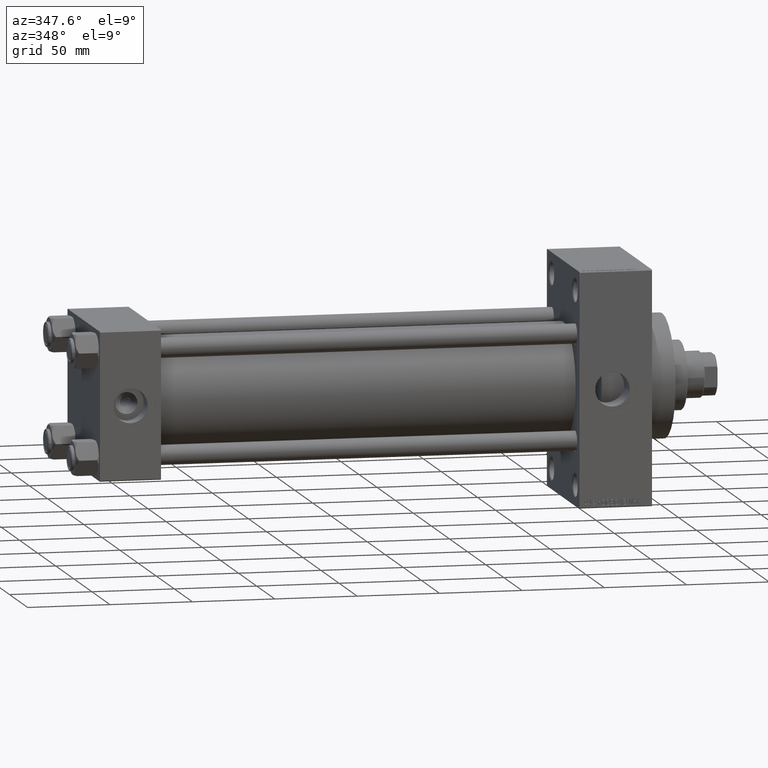
[diagram: clean part render]
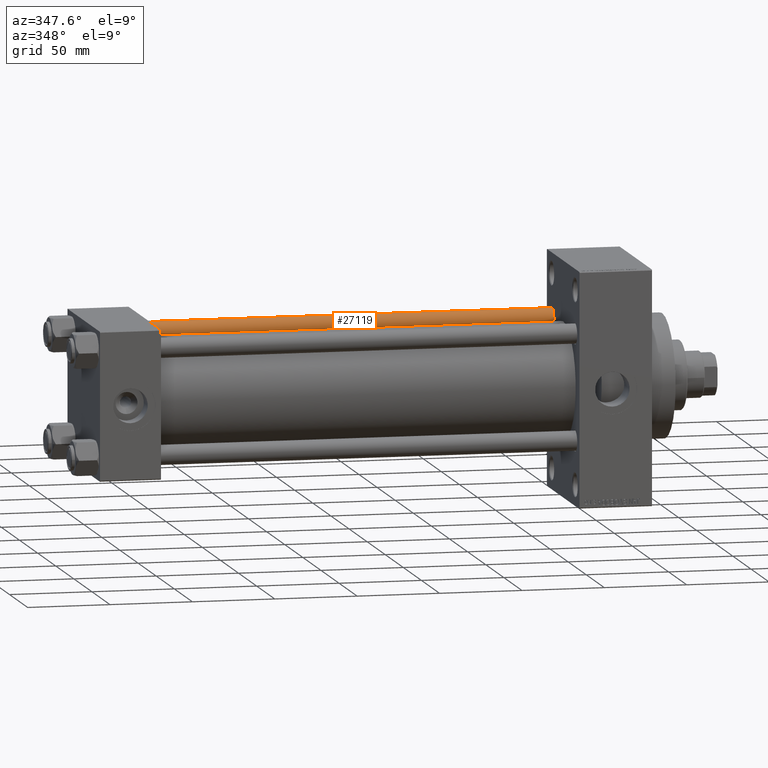
[diagram: same view with one face highlighted and labeled with its STEP entity id]
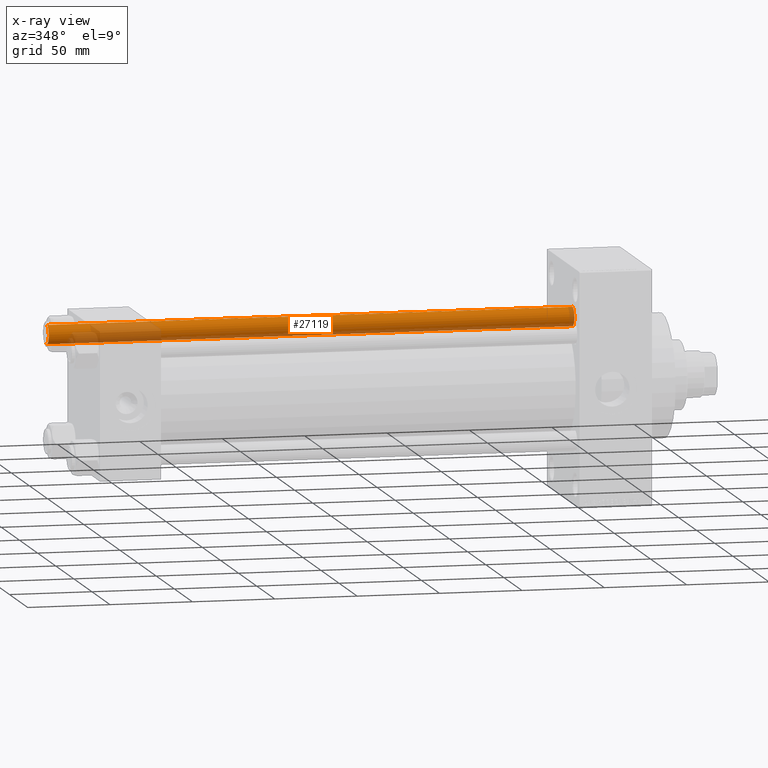
[diagram: x-ray of the same camera — body ghosted, the highlighted face saturated]
A machine part, auxiliary view. The second image highlights one B-rep face of the part: STEP entity #27119.
The next image is the same camera in x-ray: the body ghosted, the highlighted face saturated — about 27% of this face is hidden behind the body in this view.
In plain terms, the highlighted cylindrical surface (edge-blend (fillet) strip) has radius 6 mm, axis along (-1, -0, 0).
Its self-contained STEP definition (entity closure, byte-faithful):
#491 = VECTOR ( 'NONE', #29325, 1000.000000000000000 ) ;
#1293 = CARTESIAN_POINT ( 'NONE',  ( 0.000000000000000000, 0.000000000000000000, 0.5000000000000004441 ) ) ;
#1911 = VECTOR ( 'NONE', #47752, 1000.000000000000000 ) ;
#2208 = VERTEX_POINT ( 'NONE', #19850 ) ;
#4804 = DIRECTION ( 'NONE',  ( 1.000000000000000000, 0.000000000000000000, 0.000000000000000000 ) ) ;
#6456 = EDGE_CURVE ( 'NONE', #37704, #40249, #39739, .T. ) ;
#8886 = AXIS2_PLACEMENT_3D ( 'NONE', #1293, #12754, #4804 ) ;
#9322 = CYLINDRICAL_SURFACE ( 'NONE', #45897, 6.000000000000000888 ) ;
#10824 = DIRECTION ( 'NONE',  ( 0.000000000000000000, 0.000000000000000000, -1.000000000000000000 ) ) ;
#12754 = DIRECTION ( 'NONE',  ( -0.000000000000000000, -0.000000000000000000, 1.000000000000000000 ) ) ;
#13488 = EDGE_CURVE ( 'NONE', #2208, #15139, #25584, .T. ) ;
#14131 = CARTESIAN_POINT ( 'NONE',  ( 6.000000000000000888, 7.347880794884120722E-16, 320.0000000000000000 ) ) ;
#15139 = VERTEX_POINT ( 'NONE', #48299 ) ;
#15811 = FACE_OUTER_BOUND ( 'NONE', #34365, .T. ) ;
#15958 = CARTESIAN_POINT ( 'NONE',  ( 6.000000000000000888, 7.347880794884120722E-16, 319.5000000000000000 ) ) ;
#16308 = EDGE_CURVE ( 'NONE', #40249, #2208, #47258, .T. ) ;
#19069 = AXIS2_PLACEMENT_3D ( 'NONE', #48445, #10824, #33010 ) ;
#19850 = CARTESIAN_POINT ( 'NONE',  ( -6.000000000000000888, 0.000000000000000000, 0.5000000000000004441 ) ) ;
#21895 = CARTESIAN_POINT ( 'NONE',  ( -6.000000000000000888, 0.000000000000000000, 319.5000000000000000 ) ) ;
#21972 = ORIENTED_EDGE ( 'NONE', *, *, #16308, .T. ) ;
#24524 = CARTESIAN_POINT ( 'NONE',  ( 0.000000000000000000, 0.000000000000000000, 320.0000000000000000 ) ) ;
#25084 = EDGE_CURVE ( 'NONE', #37704, #15139, #25111, .T. ) ;
#25111 = LINE ( 'NONE', #14131, #491 ) ;
#25584 = CIRCLE ( 'NONE', #8886, 6.000000000000000888 ) ;
#27119 = ADVANCED_FACE ( 'NONE', ( #15811 ), #9322, .T. ) ;
#29325 = DIRECTION ( 'NONE',  ( -0.000000000000000000, -0.000000000000000000, -1.000000000000000000 ) ) ;
#32947 = ORIENTED_EDGE ( 'NONE', *, *, #6456, .T. ) ;
#33010 = DIRECTION ( 'NONE',  ( 1.000000000000000000, 0.000000000000000000, 0.000000000000000000 ) ) ;
#34365 = EDGE_LOOP ( 'NONE', ( #35626, #32947, #21972, #36725 ) ) ;
#35476 = DIRECTION ( 'NONE',  ( -0.000000000000000000, -0.000000000000000000, -1.000000000000000000 ) ) ;
#35626 = ORIENTED_EDGE ( 'NONE', *, *, #25084, .F. ) ;
#35725 = DIRECTION ( 'NONE',  ( -1.000000000000000000, 0.000000000000000000, 0.000000000000000000 ) ) ;
#36725 = ORIENTED_EDGE ( 'NONE', *, *, #13488, .T. ) ;
#37704 = VERTEX_POINT ( 'NONE', #15958 ) ;
#39739 = CIRCLE ( 'NONE', #19069, 6.000000000000000888 ) ;
#40249 = VERTEX_POINT ( 'NONE', #21895 ) ;
#40274 = CARTESIAN_POINT ( 'NONE',  ( -6.000000000000000888, 0.000000000000000000, 320.0000000000000000 ) ) ;
#45897 = AXIS2_PLACEMENT_3D ( 'NONE', #24524, #35476, #35725 ) ;
#47258 = LINE ( 'NONE', #40274, #1911 ) ;
#47752 = DIRECTION ( 'NONE',  ( -0.000000000000000000, -0.000000000000000000, -1.000000000000000000 ) ) ;
#48299 = CARTESIAN_POINT ( 'NONE',  ( 6.000000000000000888, 7.347880794884120722E-16, 0.5000000000000004441 ) ) ;
#48445 = CARTESIAN_POINT ( 'NONE',  ( 0.000000000000000000, 0.000000000000000000, 319.5000000000000000 ) ) ;